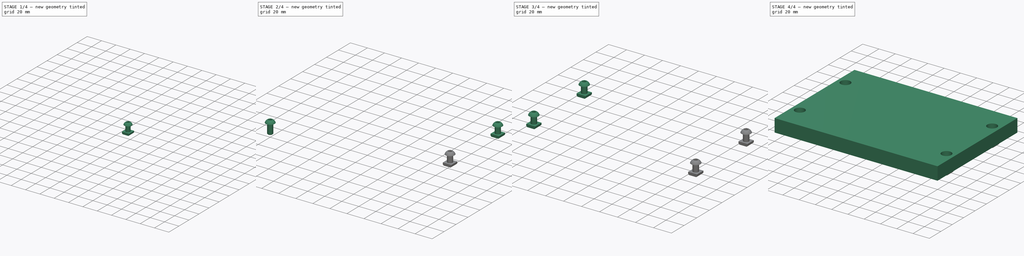
[diagram: build sequence overview — one tinted view per stage of 4, left to right]
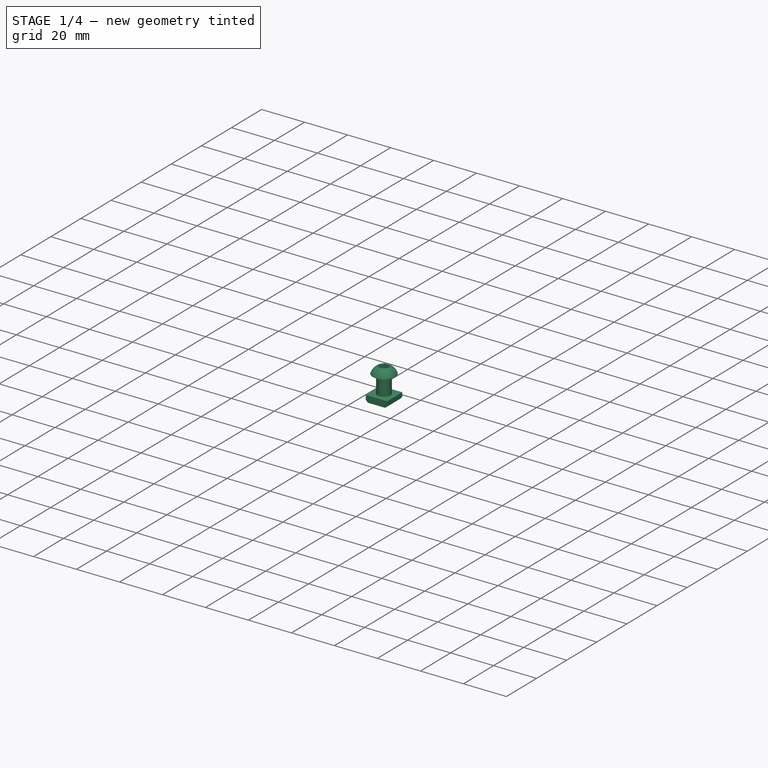
[diagram: stage 1 of 4 — iso view after this stage's code; geometry added in this stage tinted green]
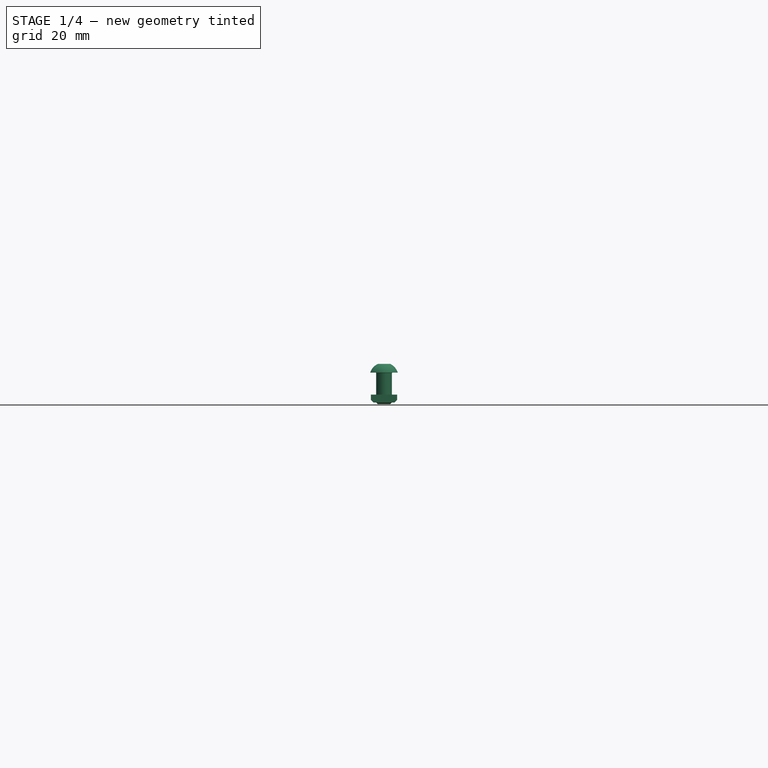
[diagram: stage 1 of 4 — front view after this stage's code; geometry added in this stage tinted green]
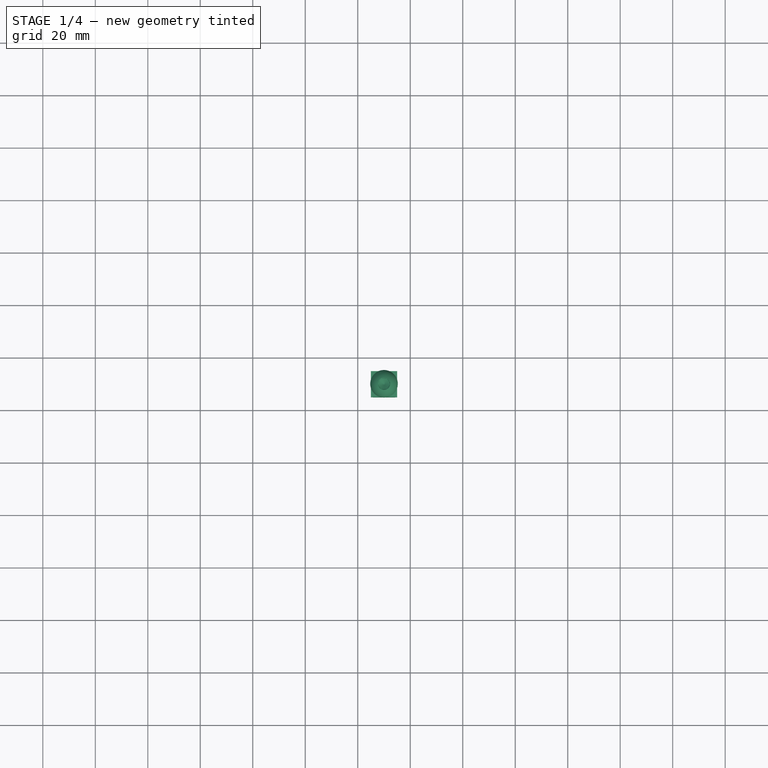
[diagram: stage 1 of 4 — top view after this stage's code; geometry added in this stage tinted green]
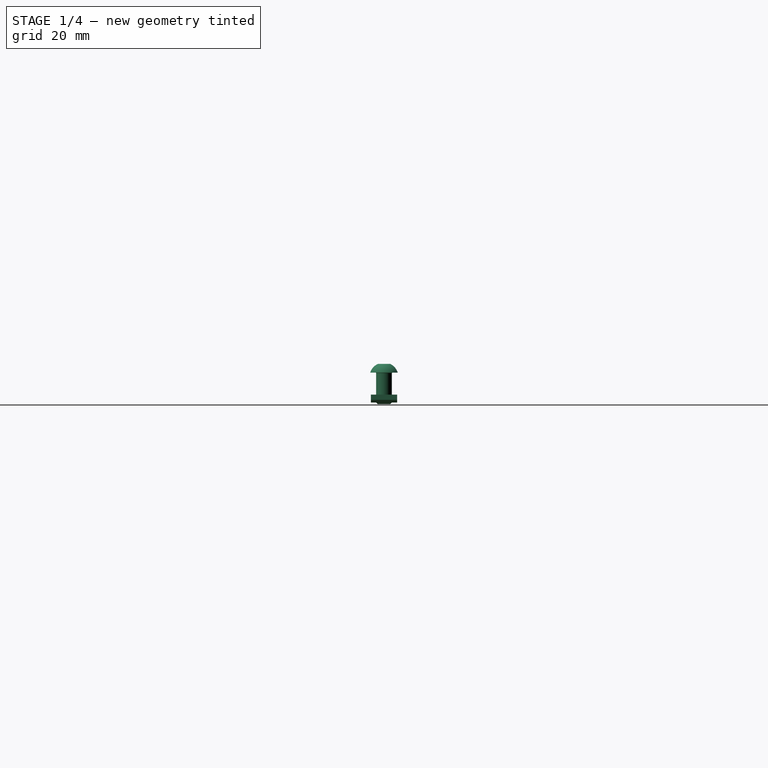
[diagram: stage 1 of 4 — right view after this stage's code; geometry added in this stage tinted green]
FCSTD DOCUMENT  (FreeCAD 0.17R9796 (Git))
Label: front_plate
License: All rights reserved
LicenseURL: http://en.wikipedia.org/wiki/All_rights_reserved
objects: Part::FeaturePython×4, Part::Feature×4, App::FeaturePython×4, Part::Compound×4, Sketcher::SketchObject×2, PartDesign::Pad×1, PartDesign::Pocket×1, PartDesign::Body×1
note: 19 computed .brp shape members not serialized (recipe doc carries the construction recipe); baked Part::Feature solids carry a one-line shape summary decoded from their .brp

FEATURE [Part::FeaturePython] Screw003  label="M6x12-Screw003"  # Fasteners workbench fastener (typed FeaturePython)
  diameter = 4
  invert = false
  length = 1
  matchOuter = false
  offset = 0
  thread = false
  type = 20
FEATURE [Part::Feature] Body004  label="m6nutplate003"
  Placement = pos=(5,-5,-8.39) rot=(0,1,0;3.14159rad)
  shape: bbox 10 x 10 x 3 mm, 9 faces (baked)
FEATURE [App::FeaturePython] circularEdgeConstraint004  # a2plus constraint (typed FeaturePython)
  Object1 = Screw
  Object2 = Body001
  SubElement1 = Edge7
  SubElement2 = Edge20
  Type = circularEdge
  directionConstraint = 1
  lockRotation = false
  offset = 0
FEATURE [Part::Compound] Compound003  label="nutplate12screw003"
  Links = -> [Screw003,circularEdgeConstraint004,Body004]
  Placement = pos=(190,30,6) rot=(0,0,1;0rad)
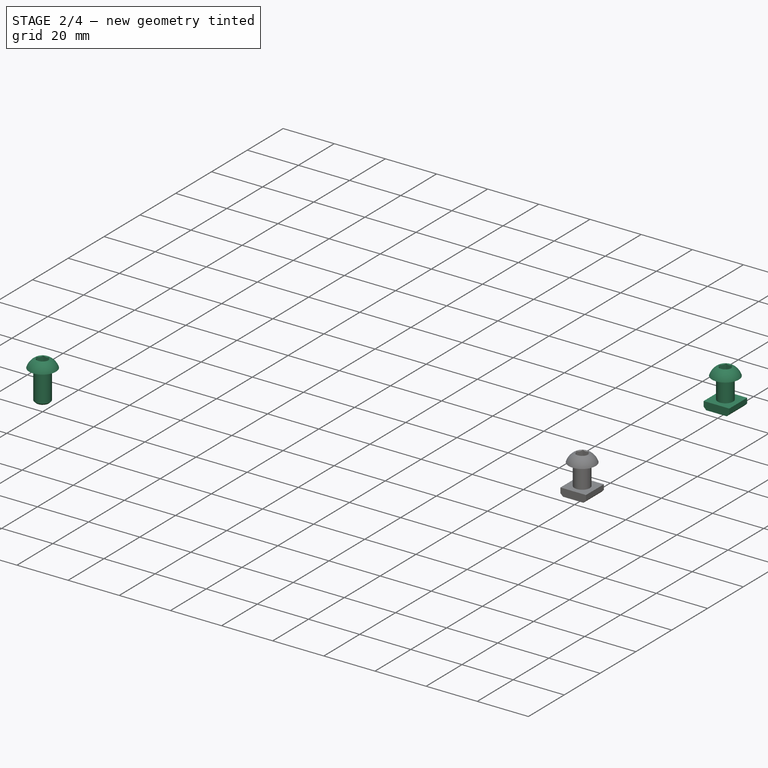
[diagram: stage 2 of 4 — iso view after this stage's code; geometry added in this stage tinted green]
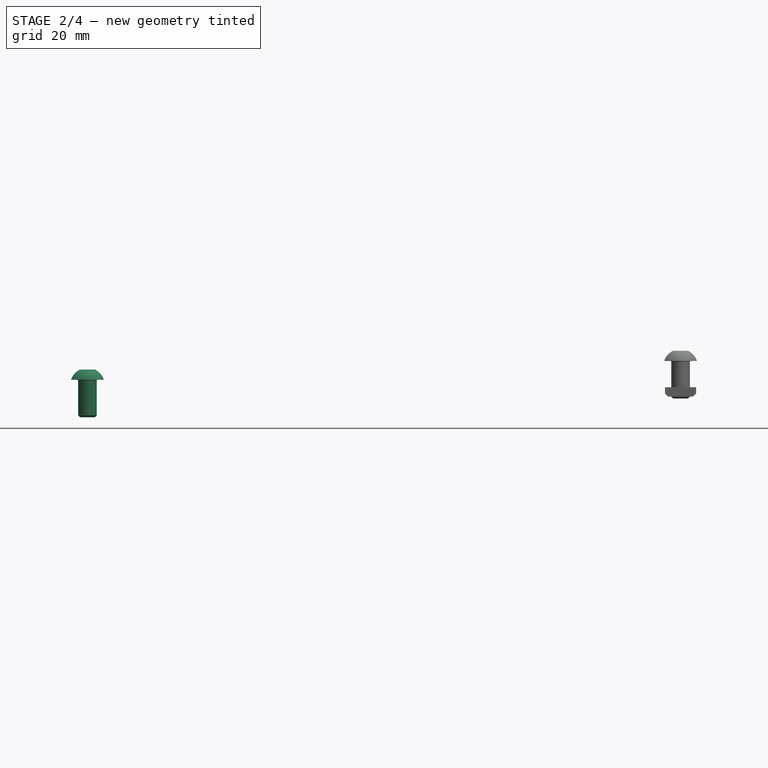
[diagram: stage 2 of 4 — front view after this stage's code; geometry added in this stage tinted green]
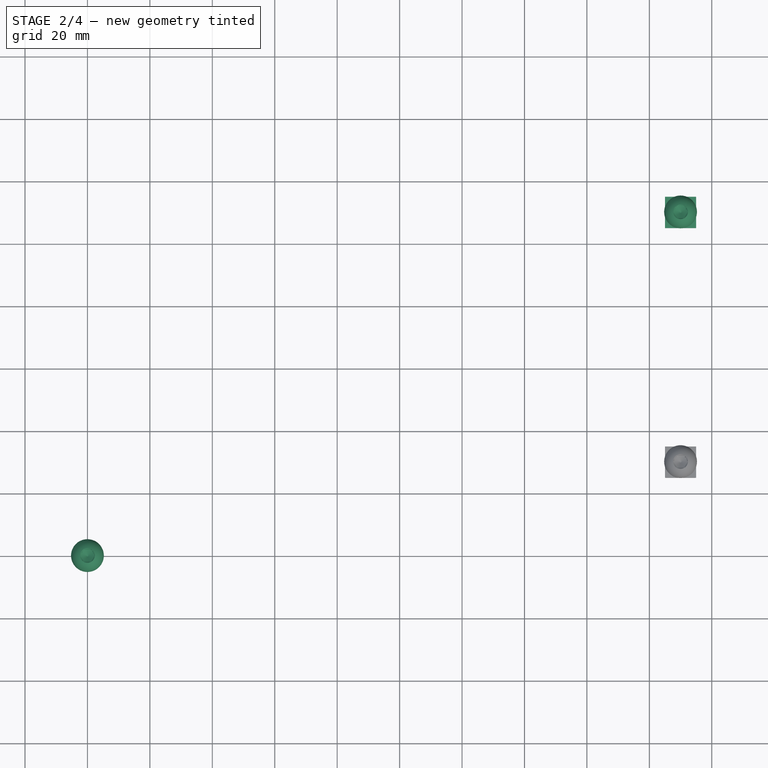
[diagram: stage 2 of 4 — top view after this stage's code; geometry added in this stage tinted green]
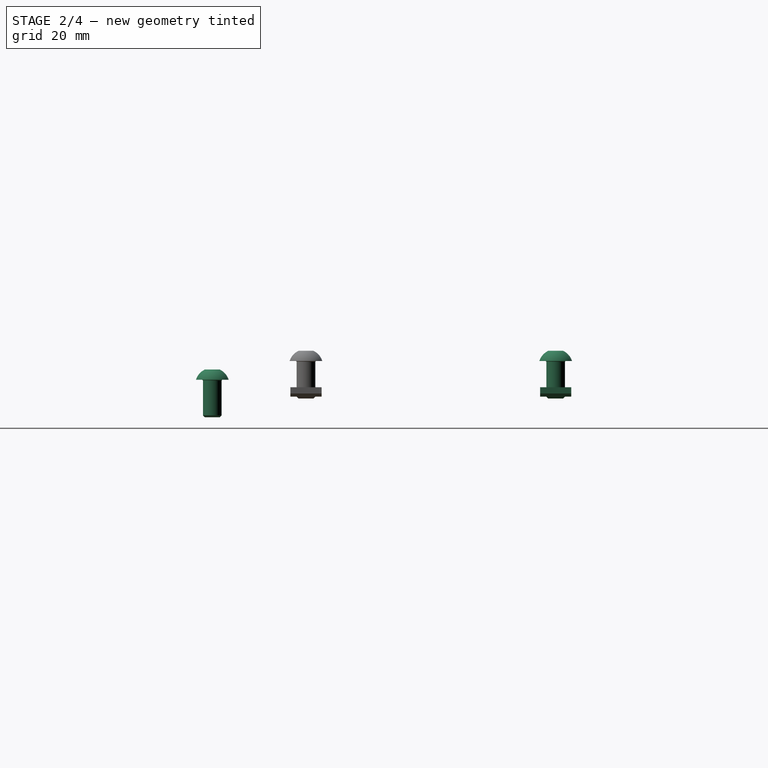
[diagram: stage 2 of 4 — right view after this stage's code; geometry added in this stage tinted green]
FEATURE [Part::FeaturePython] Screw001  label="M6x12-Screw001"  # Fasteners workbench fastener (typed FeaturePython)
  diameter = 4
  invert = false
  length = 1
  matchOuter = false
  offset = 0
  thread = false
  type = 20
FEATURE [Part::FeaturePython] Screw002  label="M6x12-Screw002"  # Fasteners workbench fastener (typed FeaturePython)
  diameter = 4
  invert = false
  length = 1
  matchOuter = false
  offset = 0
  thread = false
  type = 20
FEATURE [Part::Feature] Body003  label="m6nutplate002"
  Placement = pos=(5,-5,-8.39) rot=(0,1,0;3.14159rad)
  shape: bbox 10 x 10 x 3 mm, 9 faces (baked)
FEATURE [App::FeaturePython] circularEdgeConstraint003  # a2plus constraint (typed FeaturePython)
  Object1 = Screw
  Object2 = Body001
  SubElement1 = Edge7
  SubElement2 = Edge20
  Type = circularEdge
  directionConstraint = 1
  lockRotation = false
  offset = 0
FEATURE [Part::Compound] Compound002  label="nutplate12screw002"
  Links = -> [Screw002,circularEdgeConstraint003,Body003]
  Placement = pos=(190,110,6) rot=(0,0,1;0rad)
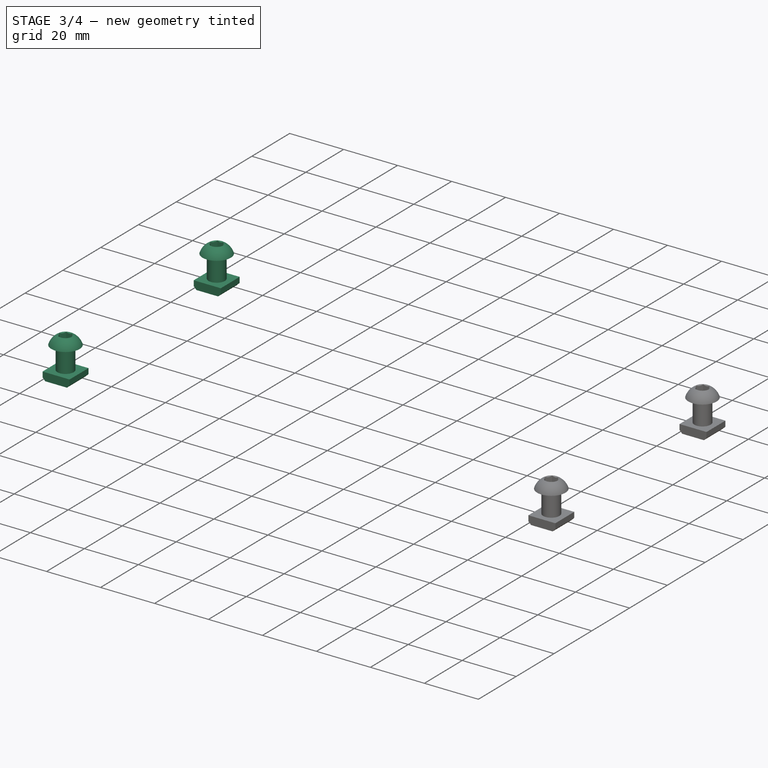
[diagram: stage 3 of 4 — iso view after this stage's code; geometry added in this stage tinted green]
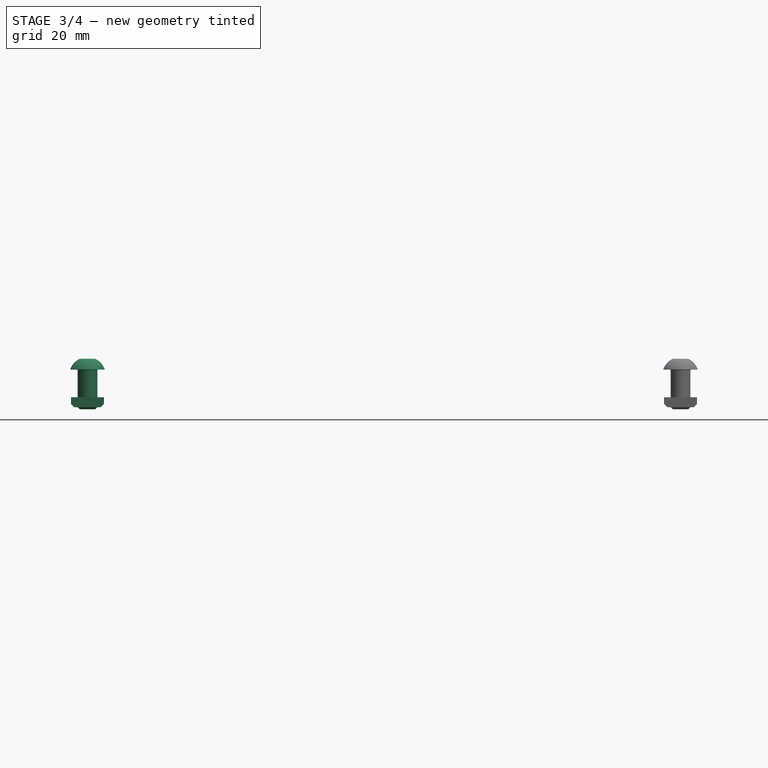
[diagram: stage 3 of 4 — front view after this stage's code; geometry added in this stage tinted green]
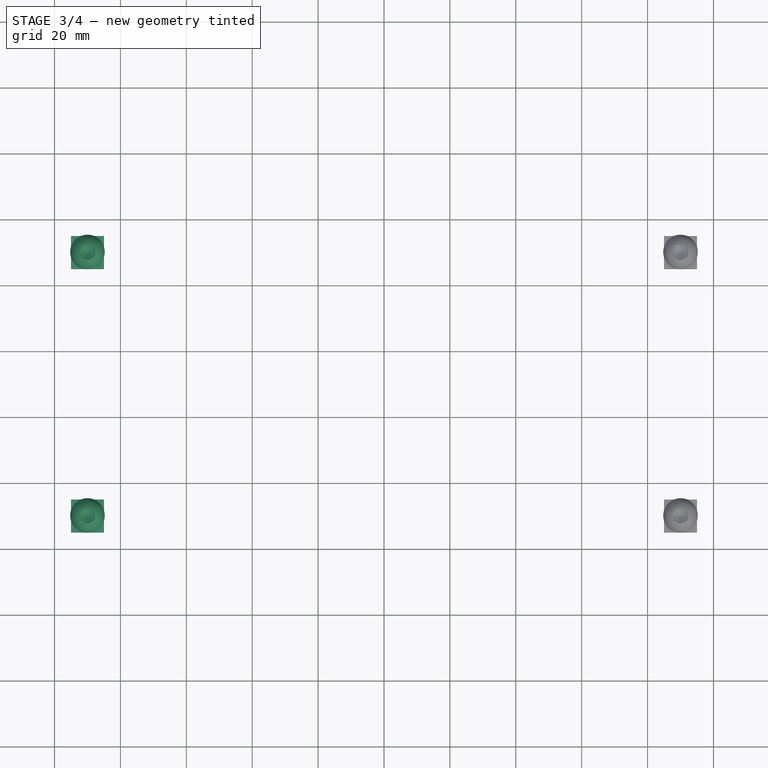
[diagram: stage 3 of 4 — top view after this stage's code; geometry added in this stage tinted green]
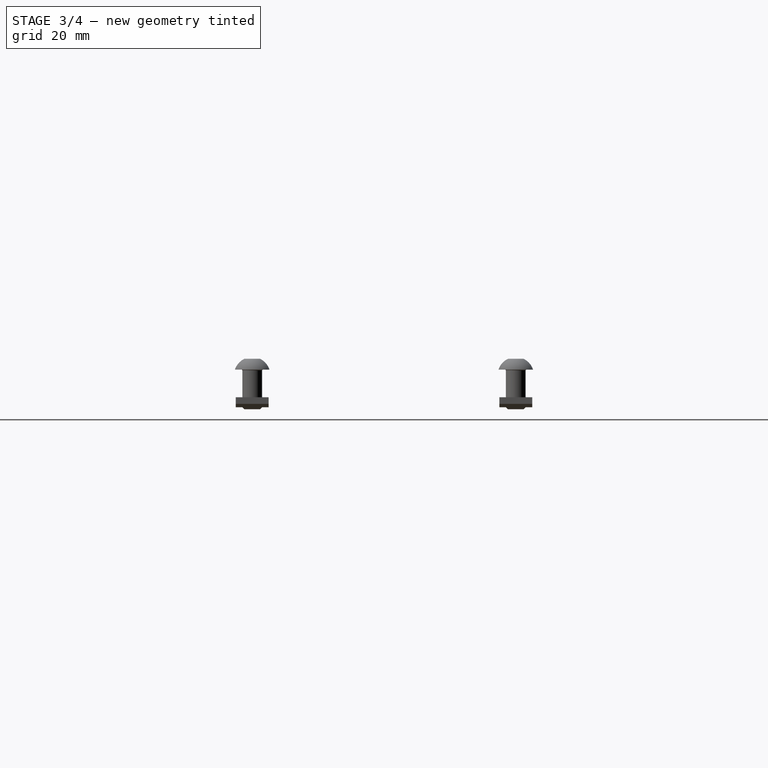
[diagram: stage 3 of 4 — right view after this stage's code; geometry added in this stage tinted green]
FEATURE [PartDesign::Body] Body
  Group = -> [Sketch,Pad,Sketch001,Pocket]
  Origin = -> BodyOrigin
  Tip = -> Pocket
FEATURE [Part::FeaturePython] Screw  label="M6x12-Screw"  # Fasteners workbench fastener (typed FeaturePython)
  diameter = 4
  invert = false
  length = 1
  matchOuter = false
  offset = 0
  thread = false
  type = 20
FEATURE [Part::Feature] Body001  label="m6nutplate"
  Placement = pos=(5,-5,-8.39) rot=(0,1,0;3.14159rad)
  shape: bbox 10 x 10 x 3 mm, 9 faces (baked)
FEATURE [App::FeaturePython] circularEdgeConstraint01  # a2plus constraint (typed FeaturePython)
  Object1 = Screw
  Object2 = Body001
  SubElement1 = Edge7
  SubElement2 = Edge20
  Type = circularEdge
  directionConstraint = 1
  lockRotation = false
  offset = 0
FEATURE [Part::Compound] Compound  label="nutplate12screw"
  Links = -> [Screw,circularEdgeConstraint01,Body001]
  Placement = pos=(10,30,6) rot=(0,0,1;0rad)
FEATURE [Part::Feature] Body002  label="m6nutplate001"
  Placement = pos=(5,-5,-8.39) rot=(0,1,0;3.14159rad)
  shape: bbox 10 x 10 x 3 mm, 9 faces (baked)
FEATURE [App::FeaturePython] circularEdgeConstraint002  # a2plus constraint (typed FeaturePython)
  Object1 = Screw
  Object2 = Body001
  SubElement1 = Edge7
  SubElement2 = Edge20
  Type = circularEdge
  directionConstraint = 1
  lockRotation = false
  offset = 0
FEATURE [Part::Compound] Compound001  label="nutplate12screw001"
  Links = -> [Screw001,circularEdgeConstraint002,Body002]
  Placement = pos=(10,110,6) rot=(0,0,1;0rad)
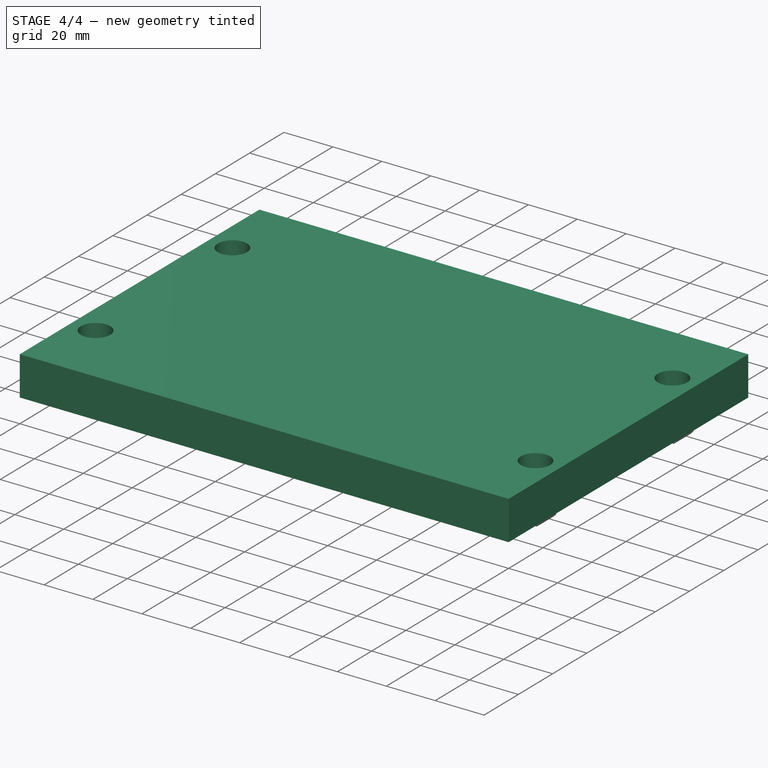
[diagram: stage 4 of 4 — iso view after this stage's code; geometry added in this stage tinted green]
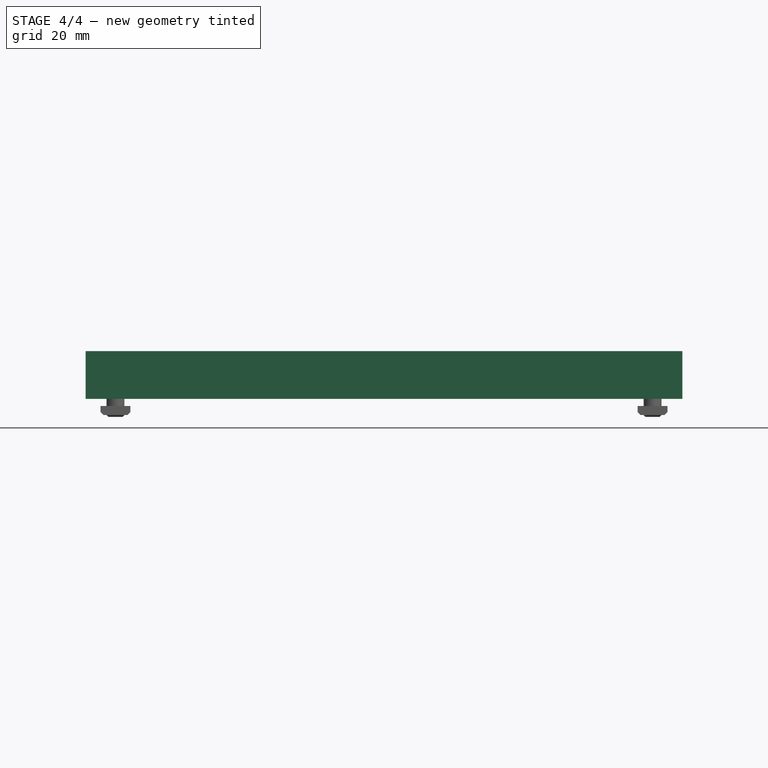
[diagram: stage 4 of 4 — front view after this stage's code; geometry added in this stage tinted green]
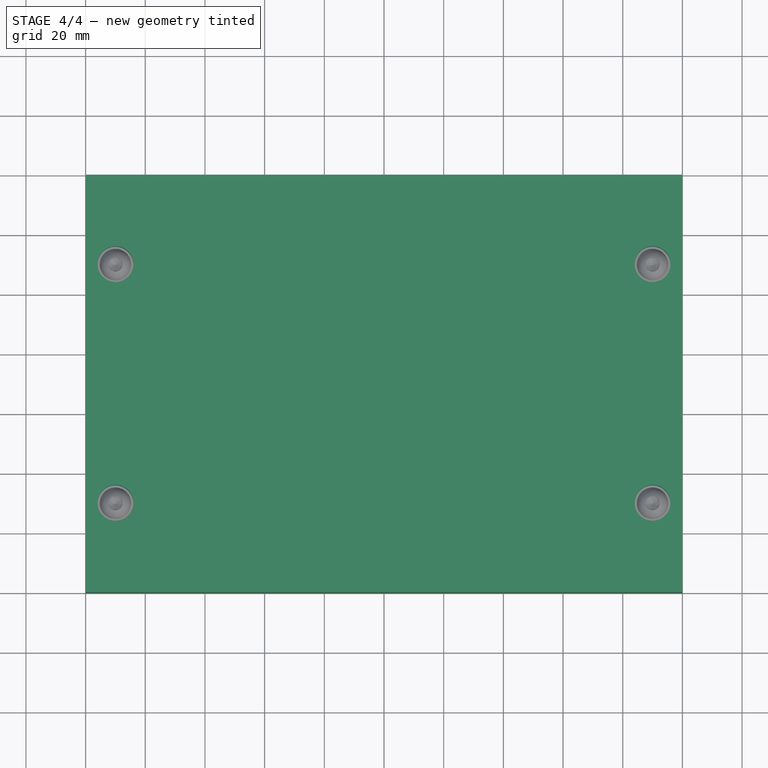
[diagram: stage 4 of 4 — top view after this stage's code; geometry added in this stage tinted green]
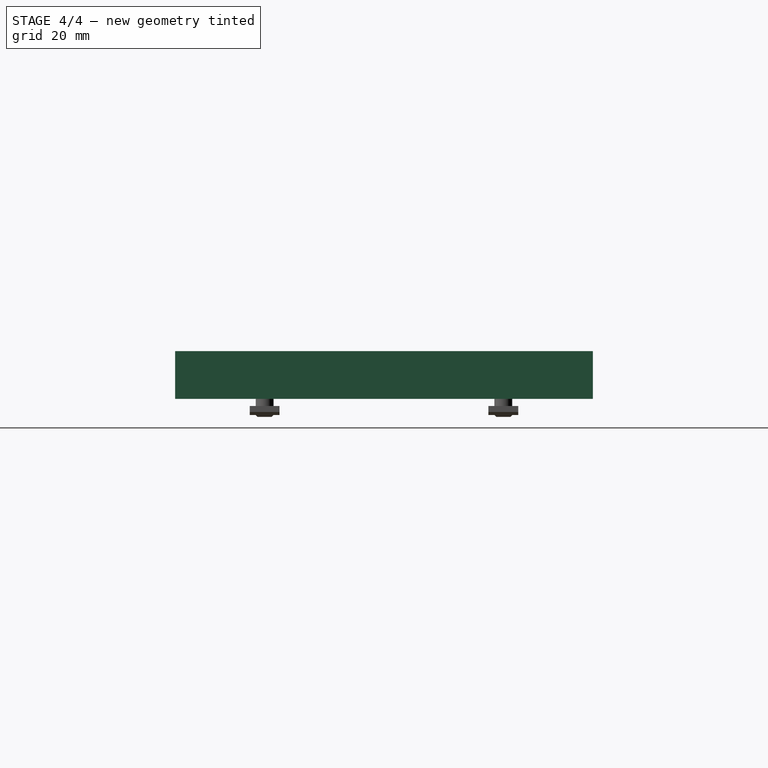
[diagram: stage 4 of 4 — right view after this stage's code; geometry added in this stage tinted green]
FEATURE [Sketcher::SketchObject] Sketch
  MapMode = 5
  Support = -> [XY_Plane]
  sketch-geometry (8):
    g0: LineSegment StartX=0 StartY=140 StartZ=0 EndX=200 EndY=140 EndZ=0
    g1: LineSegment StartX=200 StartY=140 StartZ=0 EndX=200 EndY=0 EndZ=0
    g2: LineSegment StartX=200 StartY=0 StartZ=0 EndX=0 EndY=0 EndZ=0
    g3: LineSegment StartX=0 StartY=0 StartZ=0 EndX=0 EndY=140 EndZ=0
    g4: Circle CenterX=10 CenterY=110 CenterZ=0 NormalX=0 NormalY=0 NormalZ=1 Radius=3
    g5: Circle CenterX=10 CenterY=30 CenterZ=0 NormalX=0 NormalY=0 NormalZ=1 Radius=3
    g6: Circle CenterX=190 CenterY=110 CenterZ=0 NormalX=0 NormalY=0 NormalZ=1 Radius=3
    g7: Circle CenterX=190 CenterY=30 CenterZ=0 NormalX=0 NormalY=0 NormalZ=1 Radius=3
  constraints (23):
    c: Coincident(g0,g1)
    c: Coincident(g1,g2)
    c: Coincident(g2,g3)
    c: Coincident(g3,g0)
    c: Horizontal(g0)
    c: Horizontal(g2)
    c: Vertical(g1)
    c: Vertical(g3)
    c: Coincident(g2,g-1)
    c: DistanceY(g3,g3) = 140
    c: DistanceX(g2,g2) = 200
    c: DistanceX(g6,g0) = 10
    c: DistanceX(g7,g1) = 10
    c: DistanceX(g-1,g5) = 10
    c: DistanceX(g0,g4) = 10
    c: DistanceY(g-1,g5) = 30
    c: DistanceY(g1,g7) = 30
    c: DistanceY(g6,g0) = 30
    c: DistanceY(g4,g0) = 30
    c: Radius(g4) = 3
    c: Radius(g6) = 3
    c: Radius(g7) = 3
    c: Radius(g5) = 3
FEATURE [PartDesign::Pad] Pad
  Length = 16
  Length2 = 100
  Profile = -> Sketch
  Type = 0
FEATURE [Sketcher::SketchObject] Sketch001
  MapMode = 5
  Placement = pos=(0,0,16) rot=(0,0,1;0rad)
  Support = -> [Pad]
  sketch-geometry (4):
    g0: Circle CenterX=10 CenterY=110 CenterZ=0 NormalX=0 NormalY=0 NormalZ=1 Radius=6
    g1: Circle CenterX=190 CenterY=110 CenterZ=0 NormalX=0 NormalY=0 NormalZ=1 Radius=6
    g2: Circle CenterX=190 CenterY=30 CenterZ=0 NormalX=0 NormalY=0 NormalZ=1 Radius=6
    g3: Circle CenterX=10 CenterY=30 CenterZ=0 NormalX=0 NormalY=0 NormalZ=1 Radius=6
  constraints (12):
    c: DistanceX(g-1,g0) = 10
    c: DistanceX(g-1,g1) = 190
    c: DistanceX(g-1,g2) = 190
    c: DistanceX(g-1,g3) = 10
    c: DistanceY(g-1,g3) = 30
    c: DistanceY(g-1,g0) = 110
    c: DistanceY(g-1,g1) = 110
    c: DistanceY(g-1,g2) = 30
    c: Radius(g0) = 6
    c: Radius(g1) = 6
    c: Radius(g2) = 6
    c: Radius(g3) = 6
FEATURE [PartDesign::Pocket] Pocket
  BaseFeature = -> Pad
  Length = 10
  Profile = -> Sketch001
  Type = 0
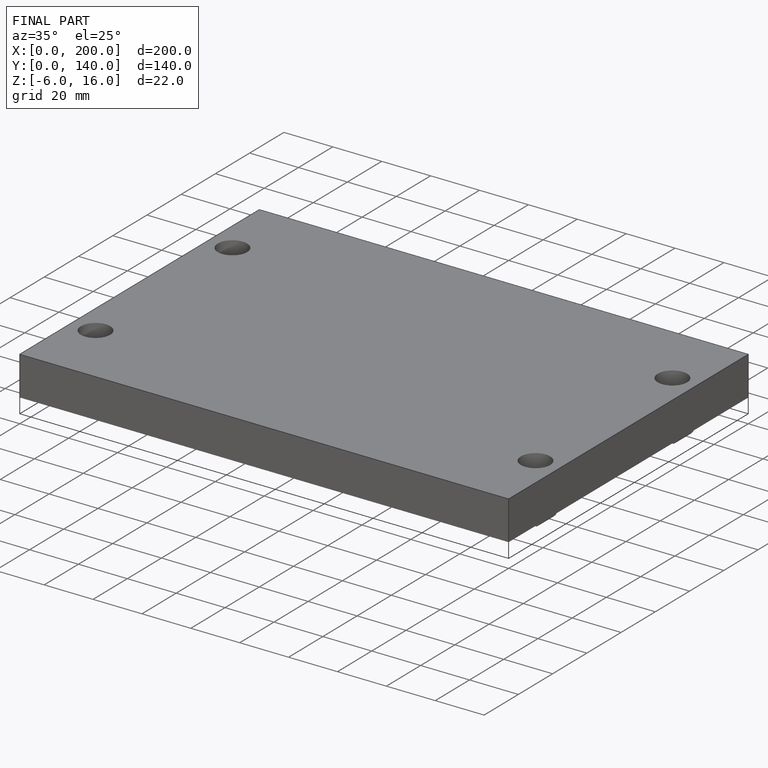
[diagram: finished part — iso view with bounding-box wireframe]
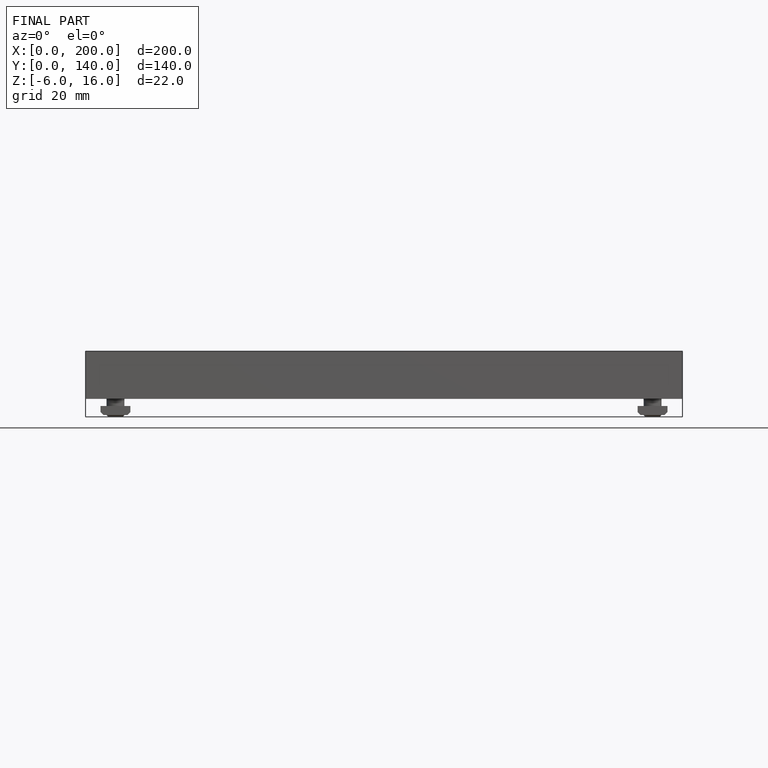
[diagram: finished part — front view with bounding-box wireframe]
